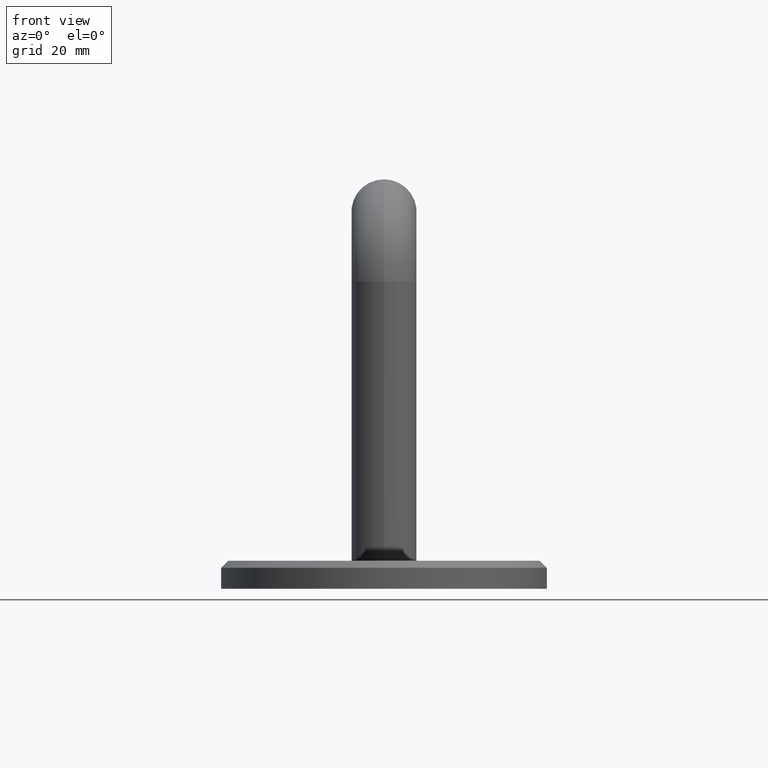
[diagram: clean part render]
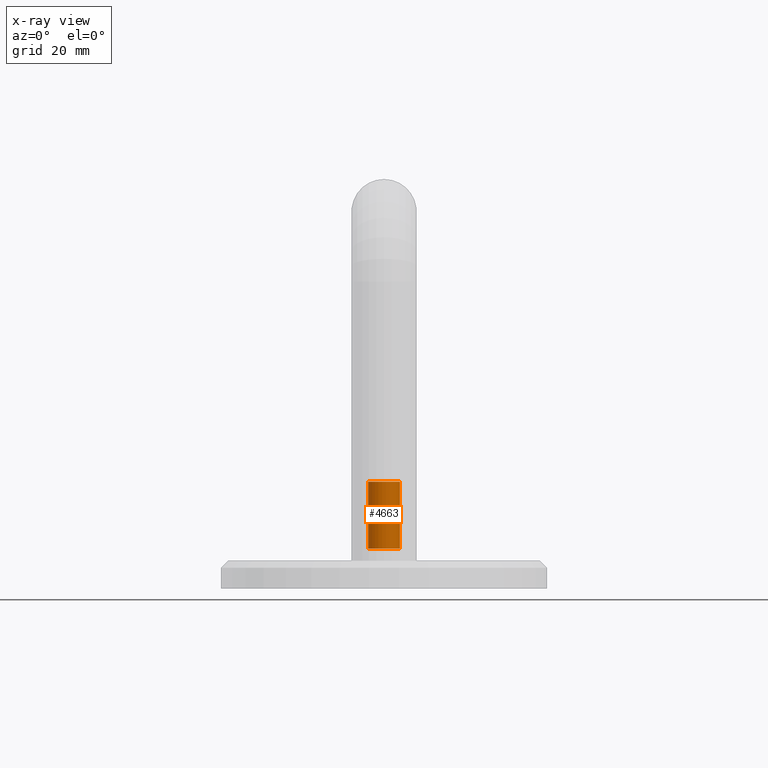
[diagram: x-ray — body ghosted, one internal face saturated and labeled with its STEP entity id]
A machine part, front view, then the same camera in x-ray: the body is ghosted and one INTERNAL B-rep face — a face not visible from any outside direction — is saturated and labeled: STEP entity #4663.
In plain terms, the highlighted cylindrical surface (edge-blend (fillet) strip) has radius 3.4 mm, axis along (0, -0, -1).
Its self-contained STEP definition (entity closure, byte-faithful):
#124 = DIRECTION ( 'NONE',  ( 1.000000000000000000, 0.000000000000000000, 0.000000000000000000 ) ) ;
#165 = CARTESIAN_POINT ( 'NONE',  ( 3.399999999999987921, 0.000000000000000000, -2.600000000000010747 ) ) ;
#2416 = VERTEX_POINT ( 'NONE', #165 ) ;
#2734 = CARTESIAN_POINT ( 'NONE',  ( 3.399999999999987921, 0.000000000000000000, 0.000000000000000000 ) ) ;
#3089 = EDGE_CURVE ( 'NONE', #10920, #6689, #9760, .T. ) ;
#3334 = EDGE_CURVE ( 'NONE', #10920, #10206, #7476, .T. ) ;
#3709 = DIRECTION ( 'NONE',  ( -0.000000000000000000, -0.000000000000000000, 1.000000000000000000 ) ) ;
#3821 = CARTESIAN_POINT ( 'NONE',  ( -3.399999999999987921, 4.163799117100986261E-16, 0.000000000000000000 ) ) ;
#3956 = DIRECTION ( 'NONE',  ( -0.000000000000000000, -0.000000000000000000, 1.000000000000000000 ) ) ;
#4592 = ORIENTED_EDGE ( 'NONE', *, *, #10960, .F. ) ;
#4663 = ADVANCED_FACE ( 'NONE', ( #14810 ), #8988, .F. ) ;
#5067 = CARTESIAN_POINT ( 'NONE',  ( -3.399999999999987921, 5.755839955992552752E-16, -2.600000000000010747 ) ) ;
#5190 = VECTOR ( 'NONE', #3956, 1000.000000000000000 ) ;
#6020 = CARTESIAN_POINT ( 'NONE',  ( 0.000000000000000000, 0.000000000000000000, 0.000000000000000000 ) ) ;
#6389 = CARTESIAN_POINT ( 'NONE',  ( 0.000000000000000000, 0.000000000000000000, -2.600000000000010747 ) ) ;
#6689 = VERTEX_POINT ( 'NONE', #5067 ) ;
#6849 = LINE ( 'NONE', #2734, #5190 ) ;
#7008 = DIRECTION ( 'NONE',  ( 1.000000000000000000, 0.000000000000000000, 0.000000000000000000 ) ) ;
#7116 = ORIENTED_EDGE ( 'NONE', *, *, #3334, .F. ) ;
#7389 = CIRCLE ( 'NONE', #10945, 3.399999999999987921 ) ;
#7476 = CIRCLE ( 'NONE', #12923, 3.399999999999986144 ) ;
#8176 = EDGE_LOOP ( 'NONE', ( #7116, #11607, #4592, #15063 ) ) ;
#8763 = EDGE_CURVE ( 'NONE', #10206, #2416, #6849, .T. ) ;
#8833 = DIRECTION ( 'NONE',  ( 0.000000000000000000, 0.000000000000000000, -1.000000000000000000 ) ) ;
#8988 = CYLINDRICAL_SURFACE ( 'NONE', #13441, 3.399999999999987921 ) ;
#9058 = CARTESIAN_POINT ( 'NONE',  ( 0.000000000000000000, 0.000000000000000000, -17.00000000000000000 ) ) ;
#9760 = LINE ( 'NONE', #3821, #12745 ) ;
#10192 = DIRECTION ( 'NONE',  ( 1.000000000000000000, 0.000000000000000000, 0.000000000000000000 ) ) ;
#10206 = VERTEX_POINT ( 'NONE', #12577 ) ;
#10920 = VERTEX_POINT ( 'NONE', #14917 ) ;
#10945 = AXIS2_PLACEMENT_3D ( 'NONE', #6389, #8833, #10192 ) ;
#10960 = EDGE_CURVE ( 'NONE', #2416, #6689, #7389, .T. ) ;
#11142 = DIRECTION ( 'NONE',  ( -0.000000000000000000, -0.000000000000000000, 1.000000000000000000 ) ) ;
#11607 = ORIENTED_EDGE ( 'NONE', *, *, #3089, .T. ) ;
#12577 = CARTESIAN_POINT ( 'NONE',  ( 3.399999999999986144, 0.000000000000000000, -17.00000000000000000 ) ) ;
#12702 = DIRECTION ( 'NONE',  ( -0.000000000000000000, -0.000000000000000000, 1.000000000000000000 ) ) ;
#12745 = VECTOR ( 'NONE', #11142, 1000.000000000000000 ) ;
#12923 = AXIS2_PLACEMENT_3D ( 'NONE', #9058, #12702, #7008 ) ;
#13441 = AXIS2_PLACEMENT_3D ( 'NONE', #6020, #3709, #124 ) ;
#14810 = FACE_OUTER_BOUND ( 'NONE', #8176, .T. ) ;
#14917 = CARTESIAN_POINT ( 'NONE',  ( -3.399999999999986144, 4.163799117100985275E-16, -17.00000000000000000 ) ) ;
#15063 = ORIENTED_EDGE ( 'NONE', *, *, #8763, .F. ) ;